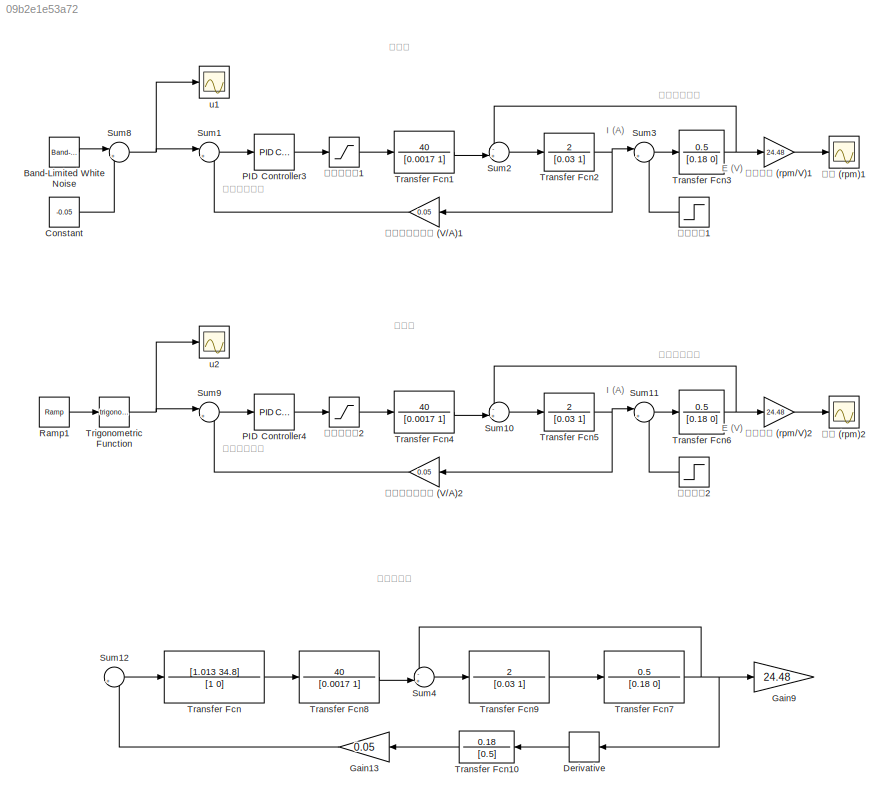
MODEL slx_09b2e1e53a72
KIND model
CONFIG AbsTol = auto
CONFIG EnableMultiTasking = off
CONFIG FixedStep = auto
CONFIG MaxStep = auto
CONFIG MinStep = auto
CONFIG RelTol = 1e-3
CONFIG SampleTimeConstraint = Unconstrained
CONFIG SolverName = VariableStepAuto
CONFIG StartTime = 0.0
CONFIG StopTime = 10.0
BLOCK [Reference] Band-Limited White Noise  REF=simulink/Sources/Band-Limited
White Noise
  Ports = [0, 1]
  SourceBlock = simulink/Sources/Band-Limited\nWhite Noise
  SourceProductBaseCode = SL
  SourceType = Band-Limited White Noise.
BLOCK [Constant] Constant
  Value = -0.05
BLOCK [Derivative] Derivative
BLOCK [Gain] Gain13
  Gain = 0.05
BLOCK [Gain] Gain9
  Gain = 24.48
BLOCK [Reference] PID Controller3  REF=pid_lib/PID Controller
  Ports = [1, 1]
  SourceBlock = pid_lib/PID Controller
  SourceProductBaseCode = SL
  SourceType = PID 1dof
BLOCK [Reference] PID Controller4  REF=pid_lib/PID Controller
  Ports = [1, 1]
  SourceBlock = pid_lib/PID Controller
  SourceProductBaseCode = SL
  SourceType = PID 1dof
BLOCK [Reference] Ramp1  REF=simulink/Sources/Ramp
  Ports = [0, 1]
  SourceBlock = simulink/Sources/Ramp
  SourceProductBaseCode = SL
  SourceType = Ramp
BLOCK [Sum] Sum1
  Inputs = |+-
  Ports = [2, 1]
BLOCK [Sum] Sum10
  Inputs = -+|
  Ports = [2, 1]
BLOCK [Sum] Sum11
  Inputs = |+-
  Ports = [2, 1]
BLOCK [Sum] Sum12
  Inputs = |+-
  Ports = [2, 1]
BLOCK [Sum] Sum2
  Inputs = -+|
  Ports = [2, 1]
BLOCK [Sum] Sum3
  Inputs = |+-
  Ports = [2, 1]
BLOCK [Sum] Sum4
  Inputs = -+|
  Ports = [2, 1]
BLOCK [Sum] Sum8
  Inputs = |+-
  Ports = [2, 1]
BLOCK [Sum] Sum9
  Inputs = |+-
  Ports = [2, 1]
BLOCK [TransferFcn] Transfer Fcn
  Denominator = [1 0]
  Numerator = [1.013 34.8]
BLOCK [TransferFcn] Transfer Fcn1
  Denominator = [0.0017 1]
  Numerator = 40
BLOCK [TransferFcn] Transfer Fcn10
  Denominator = [0.5]
  Numerator = 0.18
BLOCK [TransferFcn] Transfer Fcn2
  Denominator = [0.03 1]
  Numerator = 2
BLOCK [TransferFcn] Transfer Fcn3
  Denominator = [0.18 0]
  Numerator = 0.5
BLOCK [TransferFcn] Transfer Fcn4
  Denominator = [0.0017 1]
  Numerator = 40
BLOCK [TransferFcn] Transfer Fcn5
  Denominator = [0.03 1]
  Numerator = 2
BLOCK [TransferFcn] Transfer Fcn6
  Denominator = [0.18 0]
  Numerator = 0.5
BLOCK [TransferFcn] Transfer Fcn7
  Denominator = [0.18 0]
  Numerator = 0.5
BLOCK [TransferFcn] Transfer Fcn8
  Denominator = [0.0017 1]
  Numerator = 40
BLOCK [TransferFcn] Transfer Fcn9
  Denominator = [0.03 1]
  Numerator = 2
BLOCK [Trigonometry] Trigonometric Function
  Ports = [1, 1]
BLOCK [Scope] u1
  Floating = off
  NumInputPorts = 1
  Ports = [1]
  ScopeSpecificationString = Simulink.scopes.TimeScopeBlockCfg('CurrentConfiguration', extmgr.ConfigurationSet(extmgr.Configuration('Core','General UI',true),extmgr.Configuration('Core','Source UI',true),extmgr.Configuration('Sources','WiredSimulink',true,'DataLoggingVariableName','train_u','DataLogging',true,'DataLoggingSaveFormat','Array','SampleTime','0.001'),extmgr.Configuration('Visuals','Time Domain',true,'SerializedDis...<+1478ch>
BLOCK [Scope] u2
  Floating = off
  NumInputPorts = 1
  Ports = [1]
  ScopeSpecificationString = Simulink.scopes.TimeScopeBlockCfg('CurrentConfiguration', extmgr.ConfigurationSet(extmgr.Configuration('Core','General UI',true),extmgr.Configuration('Core','Source UI',true),extmgr.Configuration('Sources','WiredSimulink',true,'DataLoggingVariableName','val_u','DataLogging',true,'DataLoggingSaveFormat','Array','SampleTime','0.001'),extmgr.Configuration('Visuals','Time Domain',true,'SerializedDispl...<+1494ch>
BLOCK [Gain] 电势常数 (rpm//V)1
  Gain = 24.48
BLOCK [Gain] 电势常数 (rpm//V)2
  Gain = 24.48
BLOCK [Gain] 电流环测量变送 (V//A)1
  Gain = 0.05
BLOCK [Gain] 电流环测量变送 (V//A)2
  Gain = 0.05
BLOCK [Saturate] 电流环限幅1
  LowerLimit = -50
  UpperLimit = 50
BLOCK [Saturate] 电流环限幅2
  LowerLimit = -50
  UpperLimit = 50
BLOCK [Step] 负载电流1
  After = 0
  SampleTime = 0
  Time = 3
BLOCK [Step] 负载电流2
  After = 0
  SampleTime = 0
  Time = 3
BLOCK [Scope] 转速 (rpm)1
  Floating = off
  NumInputPorts = 1
  Ports = [1]
  ScopeSpecificationString = Simulink.scopes.TimeScopeBlockCfg('CurrentConfiguration', extmgr.ConfigurationSet(extmgr.Configuration('Core','General UI',true),extmgr.Configuration('Core','Source UI',true),extmgr.Configuration('Sources','WiredSimulink',true,'DataLoggingVariableName','train_y','DataLogging',true,'DataLoggingSaveFormat','Array','SampleTime','0.001'),extmgr.Configuration('Visuals','Time Domain',true,'SerializedDis...<+1522ch>
BLOCK [Scope] 转速 (rpm)2
  Floating = off
  NumInputPorts = 1
  Ports = [1]
  ScopeSpecificationString = Simulink.scopes.TimeScopeBlockCfg('CurrentConfiguration', extmgr.ConfigurationSet(extmgr.Configuration('Core','General UI',true),extmgr.Configuration('Core','Source UI',true),extmgr.Configuration('Sources','WiredSimulink',true,'DataLoggingVariableName','val_y','DataLogging',true,'DataLoggingSaveFormat','Array','SampleTime','0.001'),extmgr.Configuration('Visuals','Time Domain',true,'SerializedDispl...<+1520ch>
ANNOTATION (root): 方块图化简
ANNOTATION (root): 训练集
ANNOTATION (root): 验证集
ANNOTATION (root): 电枢反电动势
ANNOTATION (root): E (V)
ANNOTATION (root): I (A)
ANNOTATION (root): 电流环控制器
LINE Band-Limited White Noise:1 -> Sum8:1
LINE Constant:1 -> Sum8:2
LINE Derivative:1 -> Transfer Fcn10:1
LINE Gain13:1 -> Sum12:2
LINE PID Controller3:1 -> 电流环限幅1:1
LINE PID Controller4:1 -> 电流环限幅2:1
LINE Ramp1:1 -> Trigonometric Function:1
LINE Sum10:1 -> Transfer Fcn5:1
LINE Sum11:1 -> Transfer Fcn6:1
LINE Sum12:1 -> Transfer Fcn:1
LINE Sum1:1 -> PID Controller3:1
LINE Sum2:1 -> Transfer Fcn2:1
LINE Sum3:1 -> Transfer Fcn3:1
LINE Sum4:1 -> Transfer Fcn9:1
NET Sum8:1 -> Sum1:1, u1:1
LINE Sum9:1 -> PID Controller4:1
LINE Transfer Fcn10:1 -> Gain13:1
LINE Transfer Fcn1:1 -> Sum2:2
NET Transfer Fcn2:1 -> Sum3:1, 电流环测量变送 (V//A)1:1
NET Transfer Fcn3:1 -> Sum2:1, 电势常数 (rpm//V)1:1
LINE Transfer Fcn4:1 -> Sum10:2
NET Transfer Fcn5:1 -> Sum11:1, 电流环测量变送 (V//A)2:1
NET Transfer Fcn6:1 -> Sum10:1, 电势常数 (rpm//V)2:1
NET Transfer Fcn7:1 -> Derivative:1, Gain9:1, Sum4:1
LINE Transfer Fcn8:1 -> Sum4:2
LINE Transfer Fcn9:1 -> Transfer Fcn7:1
LINE Transfer Fcn:1 -> Transfer Fcn8:1
NET Trigonometric Function:1 -> Sum9:1, u2:1
LINE 电势常数 (rpm//V)1:1 -> 转速 (rpm)1:1
LINE 电势常数 (rpm//V)2:1 -> 转速 (rpm)2:1
LINE 电流环测量变送 (V//A)1:1 -> Sum1:2
LINE 电流环测量变送 (V//A)2:1 -> Sum9:2
LINE 电流环限幅1:1 -> Transfer Fcn1:1
LINE 电流环限幅2:1 -> Transfer Fcn4:1
LINE 负载电流1:1 -> Sum3:2
LINE 负载电流2:1 -> Sum11:2
note: NET lines group one-source signal fan-out (src -> all destinations, sorted); 1:1 wires keep LINE
